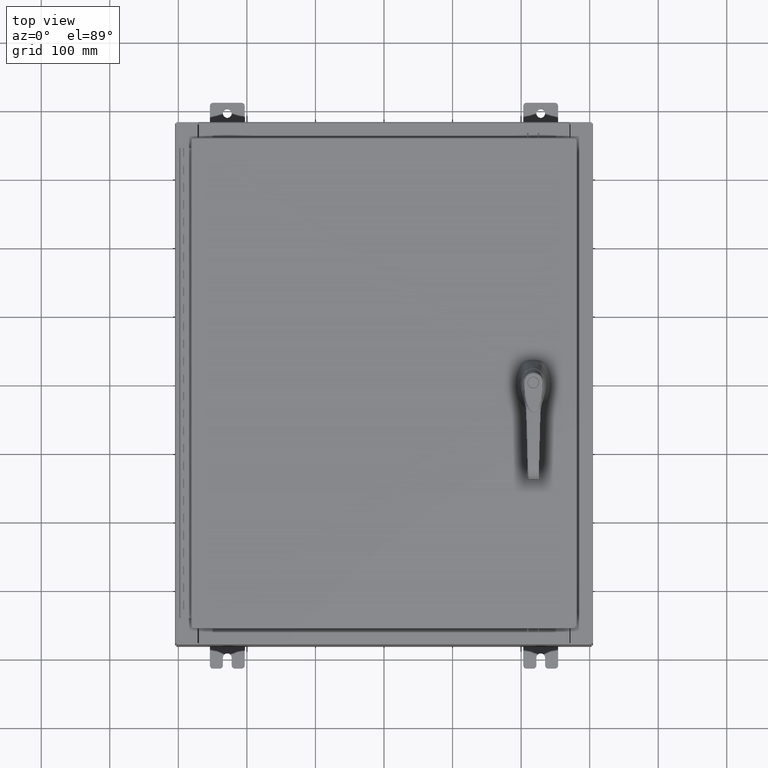
[diagram: clean part render]
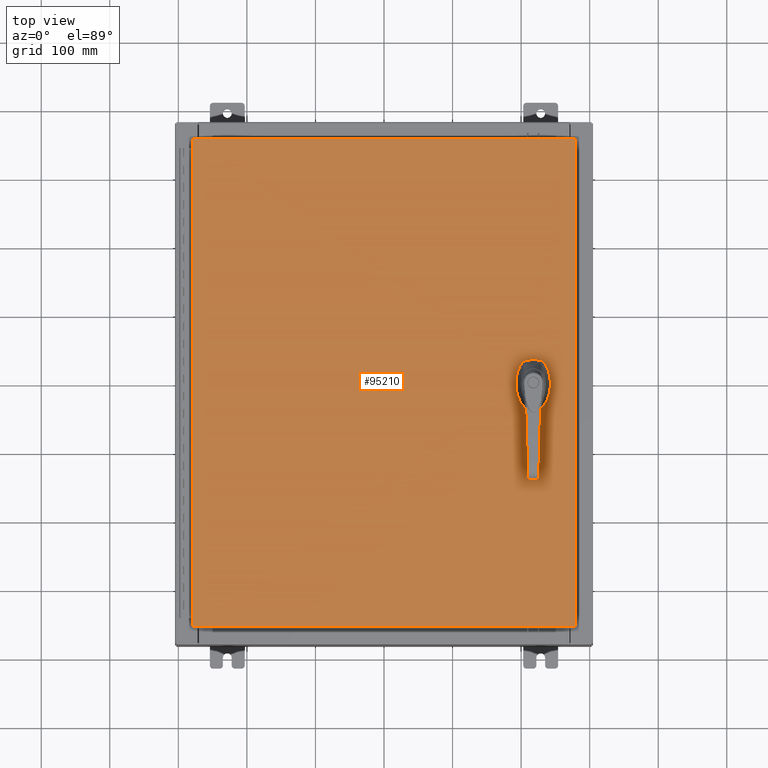
[diagram: same view with one face highlighted and labeled with its STEP entity id]
A machine part, top view. The second image highlights one B-rep face of the part: STEP entity #95210.
In plain terms, the highlighted planar face has unit normal (0, 0, -1).
Its self-contained STEP definition (entity closure, byte-faithful):
#627 = VERTEX_POINT ( 'NONE', #18431 ) ;
#1230 = CARTESIAN_POINT ( 'NONE',  ( 0.0000000000000000000, -0.4029999999999252000, 0.0000000000000000000 ) ) ;
#1301 = CARTESIAN_POINT ( 'NONE',  ( 0.0000000000000000000, 0.4029999999999252000, 0.0000000000000000000 ) ) ;
#2072 = CARTESIAN_POINT ( 'NONE',  ( 8.377772629243690300, 0.4029999999999252000, 0.0000000000000000000 ) ) ;
#2746 = VERTEX_POINT ( 'NONE', #38088 ) ;
#3454 = LINE ( 'NONE', #1230, #9180 ) ;
#6115 = VERTEX_POINT ( 'NONE', #16470 ) ;
#6200 = CIRCLE ( 'NONE', #41616, 0.4499999999999156900 ) ;
#6683 = VERTEX_POINT ( 'NONE', #50823 ) ;
#7227 = VERTEX_POINT ( 'NONE', #93407 ) ;
#8156 = VERTEX_POINT ( 'NONE', #2072 ) ;
#8901 = VERTEX_POINT ( 'NONE', #91025 ) ;
#9080 = CIRCLE ( 'NONE', #29551, 0.4499999999999156900 ) ;
#9180 = VECTOR ( 'NONE', #10373, 39.37007874015748100 ) ;
#9370 = EDGE_CURVE ( 'NONE', #106489, #2746, #87799, .T. ) ;
#9849 = ORIENTED_EDGE ( 'NONE', *, *, #63639, .F. ) ;
#10373 = DIRECTION ( 'NONE',  ( 1.000000000000000000, 0.0000000000000000000, 0.0000000000000000000 ) ) ;
#10925 = CARTESIAN_POINT ( 'NONE',  ( 8.577999999999999400, 0.0000000000000000000, 0.0000000000000000000 ) ) ;
#11622 = DIRECTION ( 'NONE',  ( 0.0000000000000000000, 0.0000000000000000000, -1.000000000000000000 ) ) ;
#12351 = VERTEX_POINT ( 'NONE', #16582 ) ;
#12373 = LINE ( 'NONE', #1301, #105746 ) ;
#12887 = CIRCLE ( 'NONE', #54362, 0.4499999999999156900 ) ;
#13160 = DIRECTION ( 'NONE',  ( 0.0000000000000000000, 1.000000000000000000, 0.0000000000000000000 ) ) ;
#14618 = CARTESIAN_POINT ( 'NONE',  ( -10.99030000000000000, 14.00630000000000100, -2.048885995248197400E-016 ) ) ;
#16470 = CARTESIAN_POINT ( 'NONE',  ( 8.175000000000073500, -0.2002273707563079800, 0.0000000000000000000 ) ) ;
#16582 = CARTESIAN_POINT ( 'NONE',  ( 8.175000000000073500, 0.2002273707563079800, 0.0000000000000000000 ) ) ;
#17643 = ORIENTED_EDGE ( 'NONE', *, *, #9370, .T. ) ;
#18431 = CARTESIAN_POINT ( 'NONE',  ( 8.980999999999925300, 0.2002273707563080300, 0.0000000000000000000 ) ) ;
#19185 = CARTESIAN_POINT ( 'NONE',  ( 8.778227370756310300, 0.4029999999999252000, 0.0000000000000000000 ) ) ;
#19544 = DIRECTION ( 'NONE',  ( -0.0000000000000000000, 0.0000000000000000000, 1.000000000000000000 ) ) ;
#19785 = EDGE_LOOP ( 'NONE', ( #55347, #110052 ) ) ;
#19975 = CIRCLE ( 'NONE', #109653, 0.1715000000000011500 ) ;
#19981 = EDGE_CURVE ( 'NONE', #70156, #8901, #19975, .T. ) ;
#20066 = DIRECTION ( 'NONE',  ( 1.000000000000000000, 0.0000000000000000000, 0.0000000000000000000 ) ) ;
#21535 = CARTESIAN_POINT ( 'NONE',  ( 0.0000000000000000000, 0.0000000000000000000, 0.0000000000000000000 ) ) ;
#23288 = CARTESIAN_POINT ( 'NONE',  ( 8.577999999999999400, 0.0000000000000000000, 0.0000000000000000000 ) ) ;
#23460 = VERTEX_POINT ( 'NONE', #58608 ) ;
#24506 = DIRECTION ( 'NONE',  ( 1.000000000000000000, -0.0000000000000000000, -0.0000000000000000000 ) ) ;
#27397 = ORIENTED_EDGE ( 'NONE', *, *, #90801, .F. ) ;
#27989 = CARTESIAN_POINT ( 'NONE',  ( 8.980999999999927000, -0.2002273707563079800, 0.0000000000000000000 ) ) ;
#28733 = DIRECTION ( 'NONE',  ( -1.000000000000000000, 0.0000000000000000000, 0.0000000000000000000 ) ) ;
#29047 = CARTESIAN_POINT ( 'NONE',  ( 8.377772629243690300, -0.4029999999999252000, 0.0000000000000000000 ) ) ;
#29551 = AXIS2_PLACEMENT_3D ( 'NONE', #100704, #46567, #109807 ) ;
#31401 = VECTOR ( 'NONE', #46268, 39.37007874015748100 ) ;
#31431 = CARTESIAN_POINT ( 'NONE',  ( 10.99030000000000000, -14.00629999999999800, -2.048885995248197400E-016 ) ) ;
#32270 = PLANE ( 'NONE',  #57074 ) ;
#32395 = DIRECTION ( 'NONE',  ( 1.000000000000000000, 0.0000000000000000000, 0.0000000000000000000 ) ) ;
#36334 = CARTESIAN_POINT ( 'NONE',  ( 8.577999999999999400, -1.338000000000000100, 0.0000000000000000000 ) ) ;
#37397 = CIRCLE ( 'NONE', #69699, 0.1715000000000011500 ) ;
#37475 = DIRECTION ( 'NONE',  ( 2.728745808672812900E-015, -1.000000000000000000, 0.0000000000000000000 ) ) ;
#38088 = CARTESIAN_POINT ( 'NONE',  ( 10.99030000000000000, -14.00629999999999800, -2.048885995248197400E-016 ) ) ;
#39523 = ORIENTED_EDGE ( 'NONE', *, *, #58568, .T. ) ;
#39700 = VECTOR ( 'NONE', #24506, 39.37007874015748100 ) ;
#40064 = EDGE_CURVE ( 'NONE', #6683, #107619, #12887, .T. ) ;
#41316 = DIRECTION ( 'NONE',  ( -1.000000000000000000, 0.0000000000000000000, -0.0000000000000000000 ) ) ;
#41616 = AXIS2_PLACEMENT_3D ( 'NONE', #10925, #74229, #20066 ) ;
#41665 = VERTEX_POINT ( 'NONE', #29047 ) ;
#41724 = VECTOR ( 'NONE', #95695, 39.37007874015748100 ) ;
#41995 = CARTESIAN_POINT ( 'NONE',  ( 8.577999999999999400, 0.0000000000000000000, 0.0000000000000000000 ) ) ;
#45382 = DIRECTION ( 'NONE',  ( 1.000000000000000000, 0.0000000000000000000, 0.0000000000000000000 ) ) ;
#46052 = LINE ( 'NONE', #55245, #88470 ) ;
#46268 = DIRECTION ( 'NONE',  ( -1.000000000000000000, -0.0000000000000000000, -0.0000000000000000000 ) ) ;
#46567 = DIRECTION ( 'NONE',  ( -0.0000000000000000000, 0.0000000000000000000, 1.000000000000000000 ) ) ;
#49729 = EDGE_CURVE ( 'NONE', #23460, #7227, #100670, .T. ) ;
#50260 = FACE_BOUND ( 'NONE', #19785, .T. ) ;
#50823 = CARTESIAN_POINT ( 'NONE',  ( 8.778227370756310300, -0.4029999999999252000, 0.0000000000000000000 ) ) ;
#51102 = DIRECTION ( 'NONE',  ( 1.000000000000000000, 0.0000000000000000000, 0.0000000000000000000 ) ) ;
#51556 = DIRECTION ( 'NONE',  ( 0.0000000000000000000, -1.000000000000000000, 0.0000000000000000000 ) ) ;
#54362 = AXIS2_PLACEMENT_3D ( 'NONE', #23288, #86529, #32395 ) ;
#55245 = CARTESIAN_POINT ( 'NONE',  ( 8.980999999999925300, 2.450686610769032800E-014, 0.0000000000000000000 ) ) ;
#55347 = ORIENTED_EDGE ( 'NONE', *, *, #19981, .F. ) ;
#57074 = AXIS2_PLACEMENT_3D ( 'NONE', #21535, #11622, #41316 ) ;
#57666 = ORIENTED_EDGE ( 'NONE', *, *, #95604, .F. ) ;
#58568 = EDGE_CURVE ( 'NONE', #7227, #106489, #92677, .T. ) ;
#58608 = CARTESIAN_POINT ( 'NONE',  ( 10.99030000000000000, 14.00629999999999800, -2.048885995248197400E-016 ) ) ;
#59093 = VECTOR ( 'NONE', #51556, 39.37007874015748100 ) ;
#62906 = ORIENTED_EDGE ( 'NONE', *, *, #75145, .F. ) ;
#63639 = EDGE_CURVE ( 'NONE', #115008, #8156, #12373, .T. ) ;
#65486 = ORIENTED_EDGE ( 'NONE', *, *, #40064, .F. ) ;
#66353 = EDGE_CURVE ( 'NONE', #627, #107619, #46052, .T. ) ;
#69568 = CARTESIAN_POINT ( 'NONE',  ( -10.99029999999999600, -14.00629999999999800, -2.219626494852214000E-016 ) ) ;
#69699 = AXIS2_PLACEMENT_3D ( 'NONE', #73708, #19544, #82803 ) ;
#70156 = VERTEX_POINT ( 'NONE', #91622 ) ;
#70756 = VECTOR ( 'NONE', #13160, 39.37007874015748100 ) ;
#71565 = ORIENTED_EDGE ( 'NONE', *, *, #105328, .T. ) ;
#73286 = CARTESIAN_POINT ( 'NONE',  ( -10.99029999999999800, -14.00629999999999800, -2.048885995248197400E-016 ) ) ;
#73708 = CARTESIAN_POINT ( 'NONE',  ( 8.577999999999999400, -1.338000000000000100, 0.0000000000000000000 ) ) ;
#74229 = DIRECTION ( 'NONE',  ( -0.0000000000000000000, 0.0000000000000000000, 1.000000000000000000 ) ) ;
#74297 = FACE_OUTER_BOUND ( 'NONE', #112375, .T. ) ;
#75049 = EDGE_CURVE ( 'NONE', #6115, #41665, #9080, .T. ) ;
#75145 = EDGE_CURVE ( 'NONE', #8156, #12351, #6200, .T. ) ;
#75562 = EDGE_CURVE ( 'NONE', #8901, #70156, #37397, .T. ) ;
#75711 = EDGE_CURVE ( 'NONE', #627, #115008, #76921, .T. ) ;
#75725 = AXIS2_PLACEMENT_3D ( 'NONE', #41995, #105204, #51102 ) ;
#76921 = CIRCLE ( 'NONE', #75725, 0.4499999999999156900 ) ;
#77465 = EDGE_LOOP ( 'NONE', ( #80848, #65486, #57666, #98077, #27397, #62906, #9849, #97603 ) ) ;
#80848 = ORIENTED_EDGE ( 'NONE', *, *, #66353, .T. ) ;
#82803 = DIRECTION ( 'NONE',  ( 1.000000000000000000, 0.0000000000000000000, 0.0000000000000000000 ) ) ;
#86529 = DIRECTION ( 'NONE',  ( -0.0000000000000000000, 0.0000000000000000000, 1.000000000000000000 ) ) ;
#87799 = LINE ( 'NONE', #69568, #39700 ) ;
#88470 = VECTOR ( 'NONE', #37475, 39.37007874015748100 ) ;
#90576 = CARTESIAN_POINT ( 'NONE',  ( 10.99030000000000000, 14.00629999999999800, -2.048885995248197400E-016 ) ) ;
#90801 = EDGE_CURVE ( 'NONE', #12351, #6115, #107145, .T. ) ;
#91025 = CARTESIAN_POINT ( 'NONE',  ( 8.406499999999999400, -1.338000000000000100, 0.0000000000000000000 ) ) ;
#91622 = CARTESIAN_POINT ( 'NONE',  ( 8.749500000000001200, -1.338000000000000100, 0.0000000000000000000 ) ) ;
#92677 = LINE ( 'NONE', #14618, #41724 ) ;
#93407 = CARTESIAN_POINT ( 'NONE',  ( -10.99030000000000000, 14.00630000000000100, -2.048885995248197400E-016 ) ) ;
#95210 = ADVANCED_FACE ( 'NONE', ( #50260, #74297, #98329 ), #32270, .F. ) ;
#95604 = EDGE_CURVE ( 'NONE', #41665, #6683, #3454, .T. ) ;
#95695 = DIRECTION ( 'NONE',  ( 0.0000000000000000000, -1.000000000000000000, 0.0000000000000000000 ) ) ;
#97603 = ORIENTED_EDGE ( 'NONE', *, *, #75711, .F. ) ;
#98077 = ORIENTED_EDGE ( 'NONE', *, *, #75049, .F. ) ;
#98329 = FACE_BOUND ( 'NONE', #77465, .T. ) ;
#99539 = DIRECTION ( 'NONE',  ( -0.0000000000000000000, 0.0000000000000000000, 1.000000000000000000 ) ) ;
#100670 = LINE ( 'NONE', #90576, #31401 ) ;
#100704 = CARTESIAN_POINT ( 'NONE',  ( 8.577999999999999400, 0.0000000000000000000, 0.0000000000000000000 ) ) ;
#105204 = DIRECTION ( 'NONE',  ( -0.0000000000000000000, 0.0000000000000000000, 1.000000000000000000 ) ) ;
#105328 = EDGE_CURVE ( 'NONE', #2746, #23460, #113108, .T. ) ;
#105648 = CARTESIAN_POINT ( 'NONE',  ( 8.175000000000073500, 0.0000000000000000000, 0.0000000000000000000 ) ) ;
#105746 = VECTOR ( 'NONE', #28733, 39.37007874015748100 ) ;
#106489 = VERTEX_POINT ( 'NONE', #73286 ) ;
#107145 = LINE ( 'NONE', #105648, #59093 ) ;
#107619 = VERTEX_POINT ( 'NONE', #27989 ) ;
#109548 = ORIENTED_EDGE ( 'NONE', *, *, #49729, .T. ) ;
#109653 = AXIS2_PLACEMENT_3D ( 'NONE', #36334, #99539, #45382 ) ;
#109807 = DIRECTION ( 'NONE',  ( 1.000000000000000000, 0.0000000000000000000, 0.0000000000000000000 ) ) ;
#110052 = ORIENTED_EDGE ( 'NONE', *, *, #75562, .F. ) ;
#112375 = EDGE_LOOP ( 'NONE', ( #17643, #71565, #109548, #39523 ) ) ;
#113108 = LINE ( 'NONE', #31431, #70756 ) ;
#115008 = VERTEX_POINT ( 'NONE', #19185 ) ;